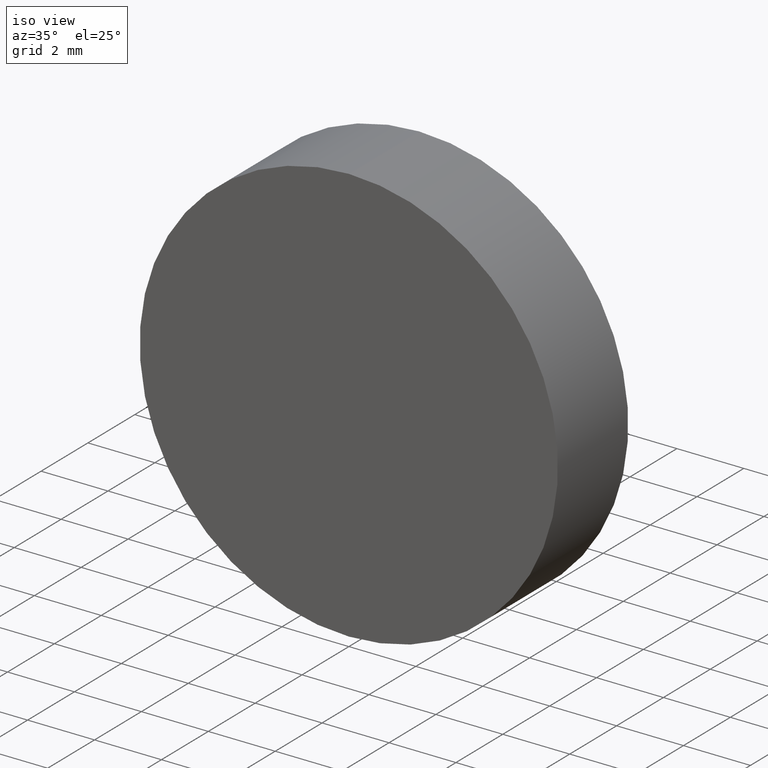
[diagram: clean part render]
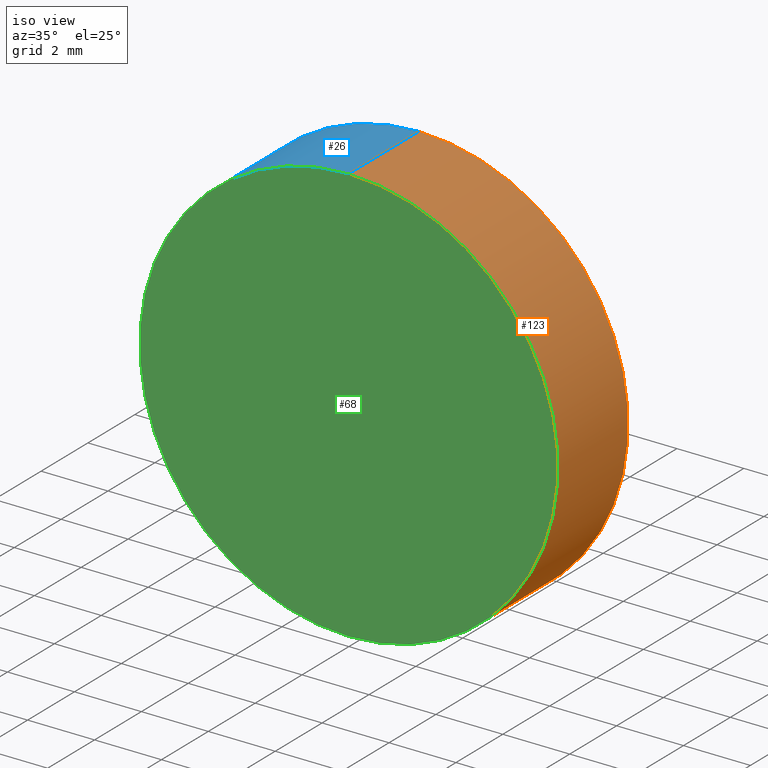
[diagram: same view with three faces highlighted in distinct colors, each labeled with its STEP entity id]
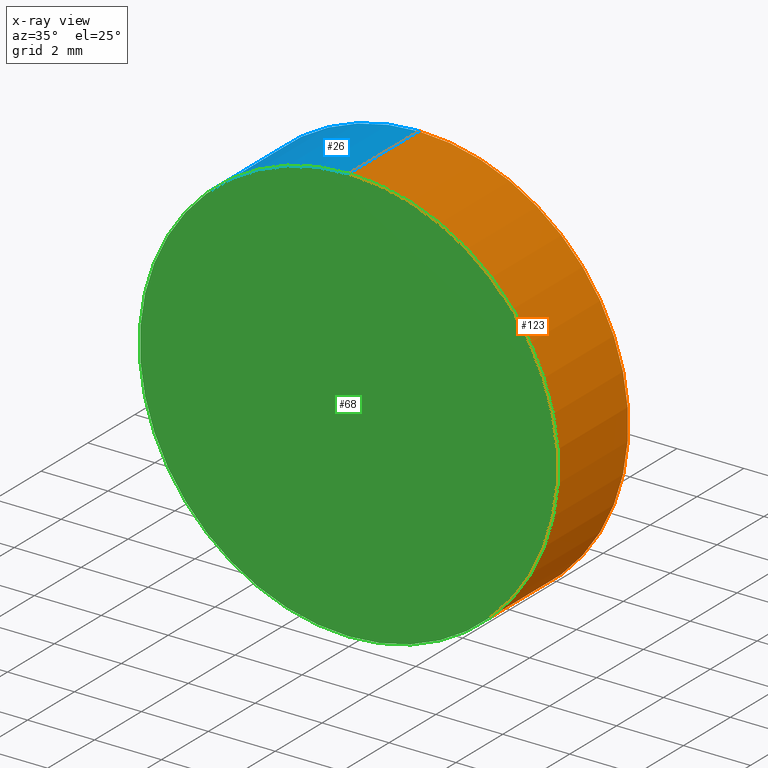
[diagram: x-ray of the same camera — body ghosted, the three highlighted faces saturated]
A machine part, iso view with three faces highlighted in distinct colors.
The next image is the same camera in x-ray (body ghosted, the three faces saturated) — at least one of them is partly hidden behind the body in this view.
Their STEP definitions:

[orange] entity #123 — the highlighted cylindrical surface (partial cylindrical patch) has radius 6.25 mm, axis along (-0, -1, -0).
#3 = CIRCLE ( 'NONE', #37, 6.250000000000000000 ) ;
#5 = EDGE_CURVE ( 'NONE', #92, #16, #87, .T. ) ;
#16 = VERTEX_POINT ( 'NONE', #100 ) ;
#17 = CARTESIAN_POINT ( 'NONE',  ( 7.654042494670957600E-016, 3.000000000000000000, 6.250000000000000000 ) ) ;
#19 = CIRCLE ( 'NONE', #76, 6.250000000000000000 ) ;
#21 = CYLINDRICAL_SURFACE ( 'NONE', #45, 6.250000000000000000 ) ;
#25 = VERTEX_POINT ( 'NONE', #66 ) ;
#29 = DIRECTION ( 'NONE',  ( 0.0000000000000000000, 0.0000000000000000000, 1.000000000000000000 ) ) ;
#31 = ORIENTED_EDGE ( 'NONE', *, *, #108, .T. ) ;
#33 = VECTOR ( 'NONE', #86, 1000.000000000000000 ) ;
#37 = AXIS2_PLACEMENT_3D ( 'NONE', #116, #110, #29 ) ;
#43 = LINE ( 'NONE', #17, #33 ) ;
#44 = CARTESIAN_POINT ( 'NONE',  ( 7.654042494670957600E-016, 0.0000000000000000000, 6.250000000000000000 ) ) ;
#45 = AXIS2_PLACEMENT_3D ( 'NONE', #91, #96, #47 ) ;
#47 = DIRECTION ( 'NONE',  ( 0.0000000000000000000, 0.0000000000000000000, -1.000000000000000000 ) ) ;
#48 = EDGE_LOOP ( 'NONE', ( #51, #109, #31, #71 ) ) ;
#51 = ORIENTED_EDGE ( 'NONE', *, *, #136, .F. ) ;
#52 = DIRECTION ( 'NONE',  ( -0.0000000000000000000, -1.000000000000000000, -0.0000000000000000000 ) ) ;
#56 = CARTESIAN_POINT ( 'NONE',  ( 0.0000000000000000000, 3.000000000000000000, -6.250000000000000000 ) ) ;
#64 = CARTESIAN_POINT ( 'NONE',  ( 0.0000000000000000000, 0.0000000000000000000, 0.0000000000000000000 ) ) ;
#66 = CARTESIAN_POINT ( 'NONE',  ( 7.654042494670957600E-016, 3.000000000000000000, 6.250000000000000000 ) ) ;
#67 = VECTOR ( 'NONE', #52, 1000.000000000000000 ) ;
#71 = ORIENTED_EDGE ( 'NONE', *, *, #5, .F. ) ;
#76 = AXIS2_PLACEMENT_3D ( 'NONE', #64, #137, #120 ) ;
#79 = VERTEX_POINT ( 'NONE', #44 ) ;
#86 = DIRECTION ( 'NONE',  ( -0.0000000000000000000, -1.000000000000000000, -0.0000000000000000000 ) ) ;
#87 = LINE ( 'NONE', #90, #67 ) ;
#90 = CARTESIAN_POINT ( 'NONE',  ( 0.0000000000000000000, 3.000000000000000000, -6.250000000000000000 ) ) ;
#91 = CARTESIAN_POINT ( 'NONE',  ( 0.0000000000000000000, 3.000000000000000000, 0.0000000000000000000 ) ) ;
#92 = VERTEX_POINT ( 'NONE', #56 ) ;
#96 = DIRECTION ( 'NONE',  ( -0.0000000000000000000, -1.000000000000000000, -0.0000000000000000000 ) ) ;
#99 = FACE_OUTER_BOUND ( 'NONE', #48, .T. ) ;
#100 = CARTESIAN_POINT ( 'NONE',  ( 0.0000000000000000000, 0.0000000000000000000, -6.250000000000000000 ) ) ;
#108 = EDGE_CURVE ( 'NONE', #79, #16, #19, .T. ) ;
#109 = ORIENTED_EDGE ( 'NONE', *, *, #124, .T. ) ;
#110 = DIRECTION ( 'NONE',  ( 0.0000000000000000000, 1.000000000000000000, 0.0000000000000000000 ) ) ;
#116 = CARTESIAN_POINT ( 'NONE',  ( 0.0000000000000000000, 3.000000000000000000, 0.0000000000000000000 ) ) ;
#120 = DIRECTION ( 'NONE',  ( 0.0000000000000000000, 0.0000000000000000000, 1.000000000000000000 ) ) ;
#123 = ADVANCED_FACE ( 'NONE', ( #99 ), #21, .T. ) ;
#124 = EDGE_CURVE ( 'NONE', #25, #79, #43, .T. ) ;
#136 = EDGE_CURVE ( 'NONE', #25, #92, #3, .T. ) ;
#137 = DIRECTION ( 'NONE',  ( 0.0000000000000000000, 1.000000000000000000, 0.0000000000000000000 ) ) ;

[blue] entity #26 — the highlighted cylindrical surface (partial cylindrical patch) has radius 6.25 mm, axis along (-0, -1, -0).
#2 = EDGE_CURVE ( 'NONE', #16, #79, #128, .T. ) ;
#4 = CARTESIAN_POINT ( 'NONE',  ( 0.0000000000000000000, 3.000000000000000000, 0.0000000000000000000 ) ) ;
#5 = EDGE_CURVE ( 'NONE', #92, #16, #87, .T. ) ;
#11 = AXIS2_PLACEMENT_3D ( 'NONE', #57, #54, #117 ) ;
#16 = VERTEX_POINT ( 'NONE', #100 ) ;
#17 = CARTESIAN_POINT ( 'NONE',  ( 7.654042494670957600E-016, 3.000000000000000000, 6.250000000000000000 ) ) ;
#18 = DIRECTION ( 'NONE',  ( 0.0000000000000000000, 0.0000000000000000000, -1.000000000000000000 ) ) ;
#23 = AXIS2_PLACEMENT_3D ( 'NONE', #4, #121, #101 ) ;
#25 = VERTEX_POINT ( 'NONE', #66 ) ;
#26 = ADVANCED_FACE ( 'NONE', ( #139 ), #134, .T. ) ;
#33 = VECTOR ( 'NONE', #86, 1000.000000000000000 ) ;
#34 = ORIENTED_EDGE ( 'NONE', *, *, #124, .F. ) ;
#40 = DIRECTION ( 'NONE',  ( -0.0000000000000000000, -1.000000000000000000, -0.0000000000000000000 ) ) ;
#43 = LINE ( 'NONE', #17, #33 ) ;
#44 = CARTESIAN_POINT ( 'NONE',  ( 7.654042494670957600E-016, 0.0000000000000000000, 6.250000000000000000 ) ) ;
#52 = DIRECTION ( 'NONE',  ( -0.0000000000000000000, -1.000000000000000000, -0.0000000000000000000 ) ) ;
#53 = ORIENTED_EDGE ( 'NONE', *, *, #113, .F. ) ;
#54 = DIRECTION ( 'NONE',  ( 0.0000000000000000000, 1.000000000000000000, 0.0000000000000000000 ) ) ;
#56 = CARTESIAN_POINT ( 'NONE',  ( 0.0000000000000000000, 3.000000000000000000, -6.250000000000000000 ) ) ;
#57 = CARTESIAN_POINT ( 'NONE',  ( 0.0000000000000000000, 0.0000000000000000000, 0.0000000000000000000 ) ) ;
#61 = CARTESIAN_POINT ( 'NONE',  ( 0.0000000000000000000, 3.000000000000000000, 0.0000000000000000000 ) ) ;
#62 = AXIS2_PLACEMENT_3D ( 'NONE', #61, #40, #18 ) ;
#66 = CARTESIAN_POINT ( 'NONE',  ( 7.654042494670957600E-016, 3.000000000000000000, 6.250000000000000000 ) ) ;
#67 = VECTOR ( 'NONE', #52, 1000.000000000000000 ) ;
#78 = ORIENTED_EDGE ( 'NONE', *, *, #5, .T. ) ;
#79 = VERTEX_POINT ( 'NONE', #44 ) ;
#83 = EDGE_LOOP ( 'NONE', ( #34, #53, #78, #131 ) ) ;
#86 = DIRECTION ( 'NONE',  ( -0.0000000000000000000, -1.000000000000000000, -0.0000000000000000000 ) ) ;
#87 = LINE ( 'NONE', #90, #67 ) ;
#90 = CARTESIAN_POINT ( 'NONE',  ( 0.0000000000000000000, 3.000000000000000000, -6.250000000000000000 ) ) ;
#92 = VERTEX_POINT ( 'NONE', #56 ) ;
#100 = CARTESIAN_POINT ( 'NONE',  ( 0.0000000000000000000, 0.0000000000000000000, -6.250000000000000000 ) ) ;
#101 = DIRECTION ( 'NONE',  ( 0.0000000000000000000, 0.0000000000000000000, 1.000000000000000000 ) ) ;
#113 = EDGE_CURVE ( 'NONE', #92, #25, #114, .T. ) ;
#114 = CIRCLE ( 'NONE', #23, 6.250000000000000000 ) ;
#117 = DIRECTION ( 'NONE',  ( 0.0000000000000000000, 0.0000000000000000000, 1.000000000000000000 ) ) ;
#121 = DIRECTION ( 'NONE',  ( 0.0000000000000000000, 1.000000000000000000, 0.0000000000000000000 ) ) ;
#124 = EDGE_CURVE ( 'NONE', #25, #79, #43, .T. ) ;
#128 = CIRCLE ( 'NONE', #11, 6.250000000000000000 ) ;
#131 = ORIENTED_EDGE ( 'NONE', *, *, #2, .T. ) ;
#134 = CYLINDRICAL_SURFACE ( 'NONE', #62, 6.250000000000000000 ) ;
#139 = FACE_OUTER_BOUND ( 'NONE', #83, .T. ) ;

[green] entity #68 — the highlighted planar face has unit normal (0, 1, 0).
#2 = EDGE_CURVE ( 'NONE', #16, #79, #128, .T. ) ;
#11 = AXIS2_PLACEMENT_3D ( 'NONE', #57, #54, #117 ) ;
#13 = PLANE ( 'NONE',  #70 ) ;
#15 = FACE_OUTER_BOUND ( 'NONE', #74, .T. ) ;
#16 = VERTEX_POINT ( 'NONE', #100 ) ;
#19 = CIRCLE ( 'NONE', #76, 6.250000000000000000 ) ;
#44 = CARTESIAN_POINT ( 'NONE',  ( 7.654042494670957600E-016, 0.0000000000000000000, 6.250000000000000000 ) ) ;
#54 = DIRECTION ( 'NONE',  ( 0.0000000000000000000, 1.000000000000000000, 0.0000000000000000000 ) ) ;
#57 = CARTESIAN_POINT ( 'NONE',  ( 0.0000000000000000000, 0.0000000000000000000, 0.0000000000000000000 ) ) ;
#64 = CARTESIAN_POINT ( 'NONE',  ( 0.0000000000000000000, 0.0000000000000000000, 0.0000000000000000000 ) ) ;
#68 = ADVANCED_FACE ( 'NONE', ( #15 ), #13, .F. ) ;
#70 = AXIS2_PLACEMENT_3D ( 'NONE', #104, #135, #132 ) ;
#74 = EDGE_LOOP ( 'NONE', ( #122, #105 ) ) ;
#76 = AXIS2_PLACEMENT_3D ( 'NONE', #64, #137, #120 ) ;
#79 = VERTEX_POINT ( 'NONE', #44 ) ;
#100 = CARTESIAN_POINT ( 'NONE',  ( 0.0000000000000000000, 0.0000000000000000000, -6.250000000000000000 ) ) ;
#104 = CARTESIAN_POINT ( 'NONE',  ( 0.0000000000000000000, 0.0000000000000000000, 0.0000000000000000000 ) ) ;
#105 = ORIENTED_EDGE ( 'NONE', *, *, #108, .F. ) ;
#108 = EDGE_CURVE ( 'NONE', #79, #16, #19, .T. ) ;
#117 = DIRECTION ( 'NONE',  ( 0.0000000000000000000, 0.0000000000000000000, 1.000000000000000000 ) ) ;
#120 = DIRECTION ( 'NONE',  ( 0.0000000000000000000, 0.0000000000000000000, 1.000000000000000000 ) ) ;
#122 = ORIENTED_EDGE ( 'NONE', *, *, #2, .F. ) ;
#128 = CIRCLE ( 'NONE', #11, 6.250000000000000000 ) ;
#132 = DIRECTION ( 'NONE',  ( 0.0000000000000000000, -0.0000000000000000000, 1.000000000000000000 ) ) ;
#135 = DIRECTION ( 'NONE',  ( 0.0000000000000000000, 1.000000000000000000, 0.0000000000000000000 ) ) ;
#137 = DIRECTION ( 'NONE',  ( 0.0000000000000000000, 1.000000000000000000, 0.0000000000000000000 ) ) ;